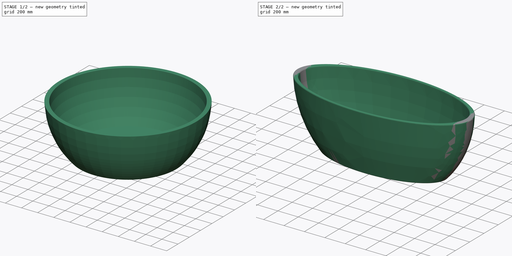
[diagram: build sequence overview — one tinted view per stage of 2, left to right]
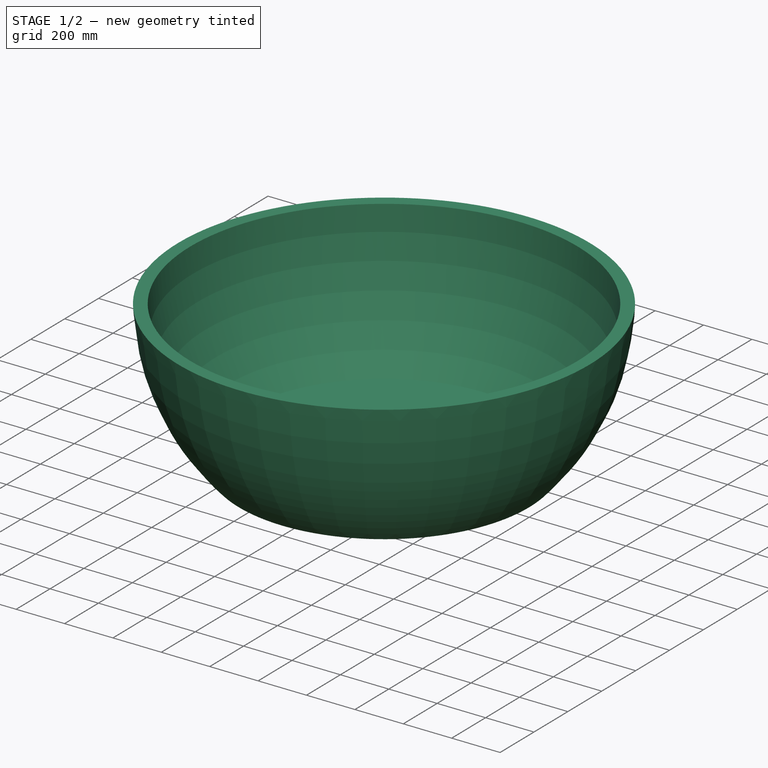
[diagram: stage 1 of 2 — iso view after this stage's code; geometry added in this stage tinted green]
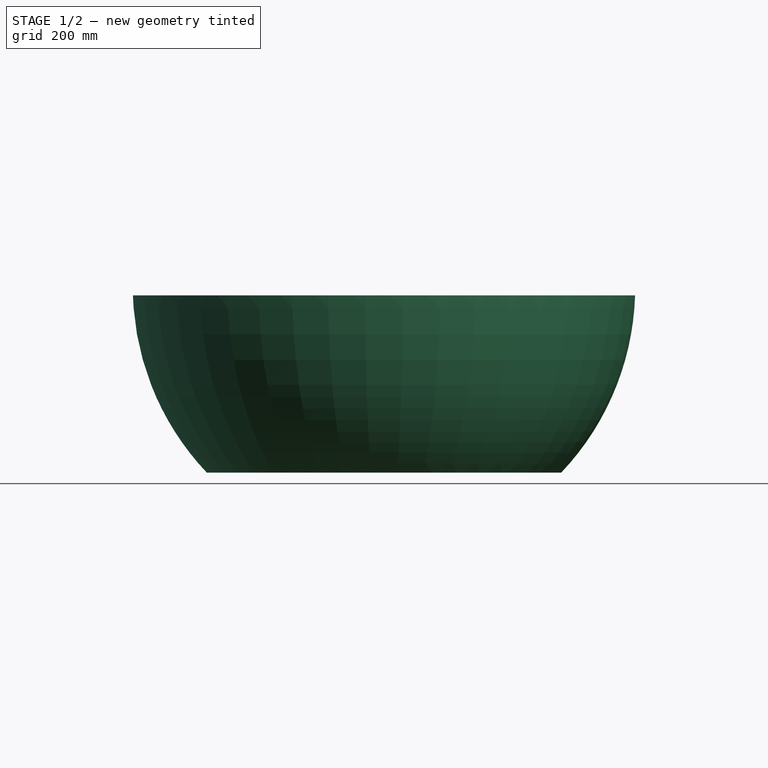
[diagram: stage 1 of 2 — front view after this stage's code; geometry added in this stage tinted green]
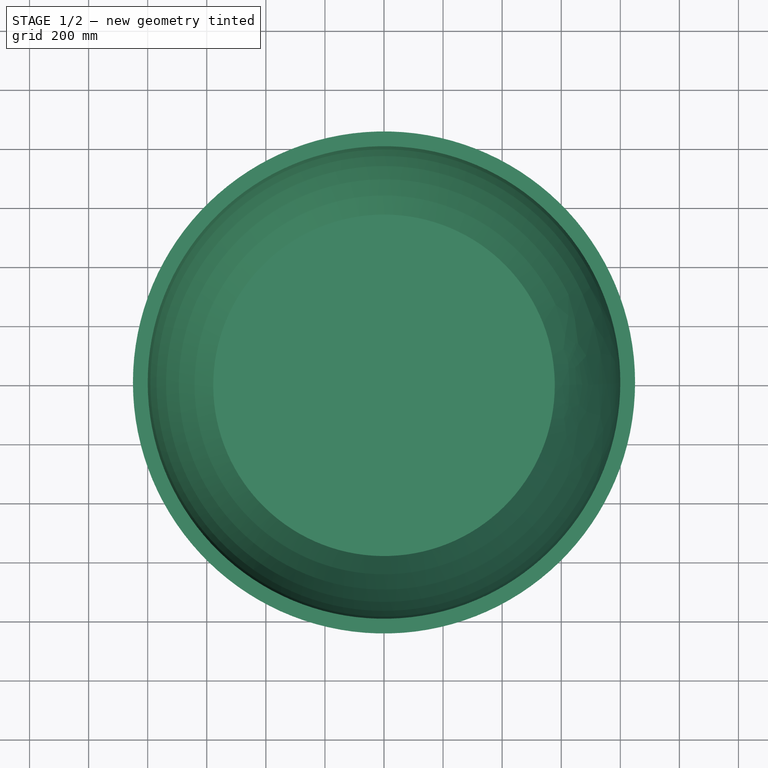
[diagram: stage 1 of 2 — top view after this stage's code; geometry added in this stage tinted green]
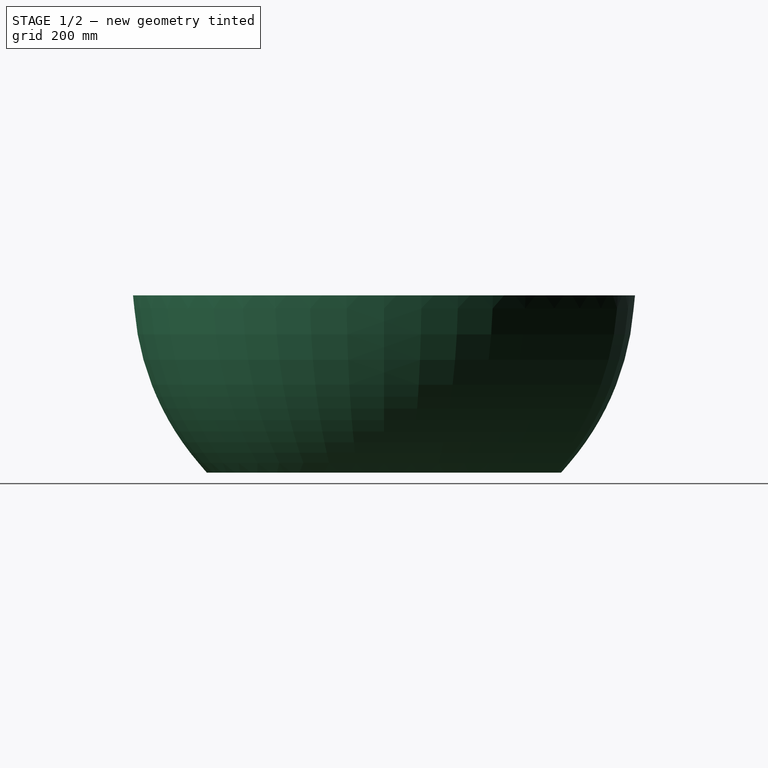
[diagram: stage 1 of 2 — right view after this stage's code; geometry added in this stage tinted green]
FCSTD DOCUMENT  (FreeCAD 0.21R33668 +26 (Git))
Label: Banheira
License: All rights reserved
objects: Sketcher::SketchObject×1, Part::Revolution×1, Part::Thickness×1, Part::FeaturePython×1, PartDesign::Fillet×1, PartDesign::Body×1
note: 7 computed .brp shape members not serialized (recipe doc carries the construction recipe); baked Part::Feature solids carry a one-line shape summary decoded from their .brp

FEATURE [Sketcher::SketchObject] Sketch
  FullyConstrained = false
  Placement = pos=(0,0,0) rot=(1,0,0;1.5708rad)
  sketch-geometry (4):
    g0: LineSegment StartX=0 StartY=600 StartZ=0 EndX=850 EndY=600 EndZ=0
    g1: LineSegment StartX=0 StartY=0 StartZ=0 EndX=600 EndY=4.83169e-11 EndZ=0
    g2: ArcOfCircle CenterX=-62.6306 CenterY=628.179 CenterZ=0 NormalX=0 NormalY=0 NormalZ=1 AngleXU=0 Radius=913.066 StartAngle=5.52447 EndAngle=6.25232
    g3: LineSegment StartX=0 StartY=600 StartZ=0 EndX=0 EndY=0 EndZ=0
  constraints (11):
    c: Horizontal(g0)
    c: Coincident(g1,g-1)
    c: PointOnObject(g1,g-1)
    c: DistanceX(g1,g1) = 600
    c: DistanceX(g0,g0) = 850
    c: PointOnObject(g0,g-2)
    c: DistanceY(g0) = 600
    c: Coincident(g2,g0)
    c: Coincident(g2,g1)
    c: Coincident(g3,g0)
    c: Coincident(g3,g1)
FEATURE [Part::Revolution] Revolve
  Angle = 360
  Axis = (0,0,1)
  Base = (0,0,0)
  FaceMakerClass = Part::FaceMakerBullseye
  Solid = true
  Source = -> Sketch
  Symmetric = false
FEATURE [Part::Thickness] Thickness
  Faces = -> Revolve [Face1]
  Intersection = false
  Join = 0
  Mode = 0
  SelfIntersection = false
  Value = -50
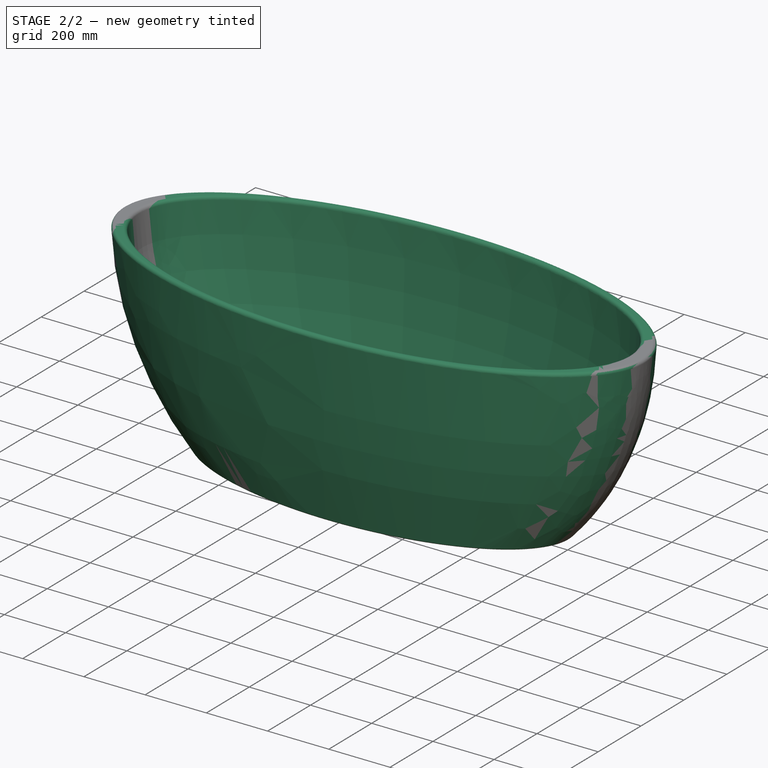
[diagram: stage 2 of 2 — iso view after this stage's code; geometry added in this stage tinted green]
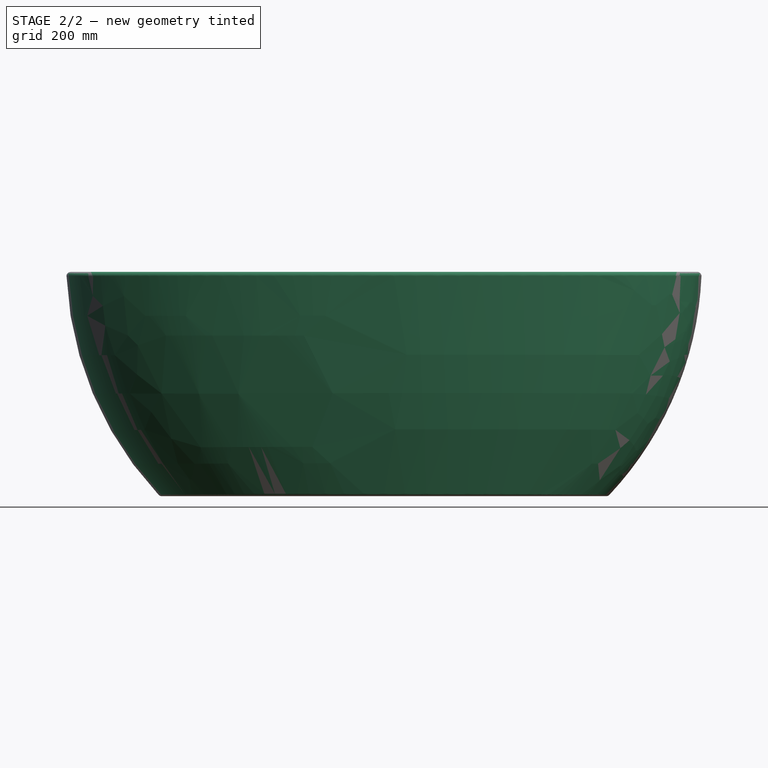
[diagram: stage 2 of 2 — front view after this stage's code; geometry added in this stage tinted green]
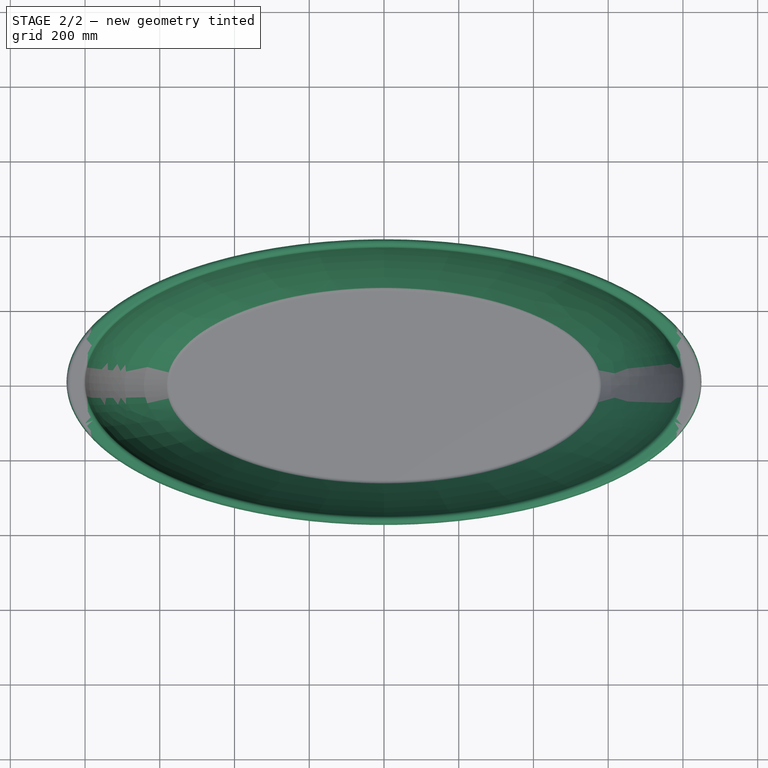
[diagram: stage 2 of 2 — top view after this stage's code; geometry added in this stage tinted green]
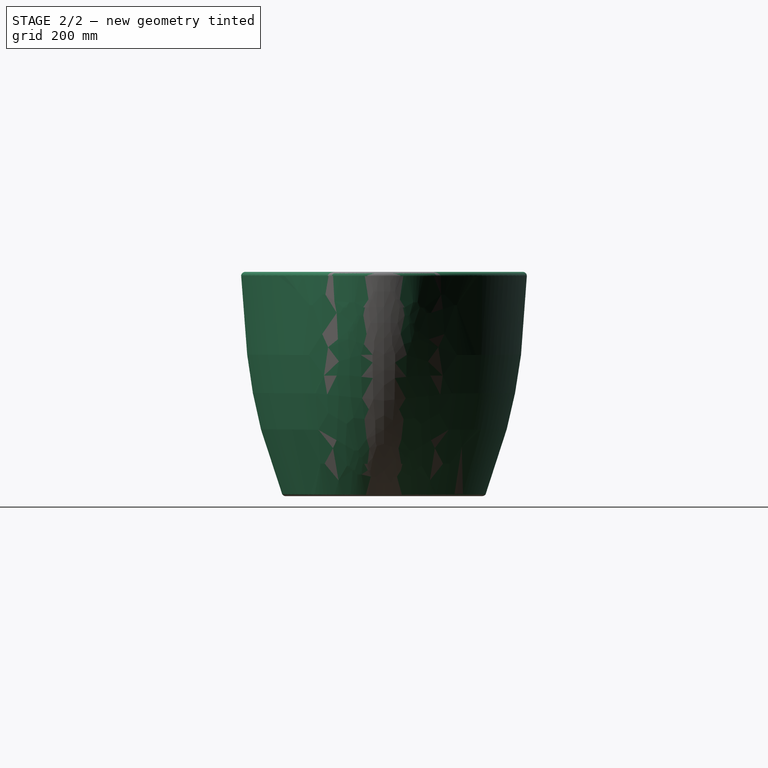
[diagram: stage 2 of 2 — right view after this stage's code; geometry added in this stage tinted green]
FEATURE [Part::FeaturePython] Clone  label="Thickness001"  # Draft clone (typed FeaturePython)
  AttacherType = Attacher::AttachEngine3D
  Fuse = false
  Objects = -> [Thickness]
  Scale = (1,0.45,1)
FEATURE [PartDesign::Fillet] Fillet
  Base = -> Clone [Edge1,Edge2,Edge3,Edge4,Edge5,Edge6]
  Radius = 11
  SupportTransform = false
  UseAllEdges = true
FEATURE [PartDesign::Body] Body  label="Banheira"
  Group = -> [Thickness,Clone,Fillet]
  Origin = -> Origin
  Tip = -> Fillet
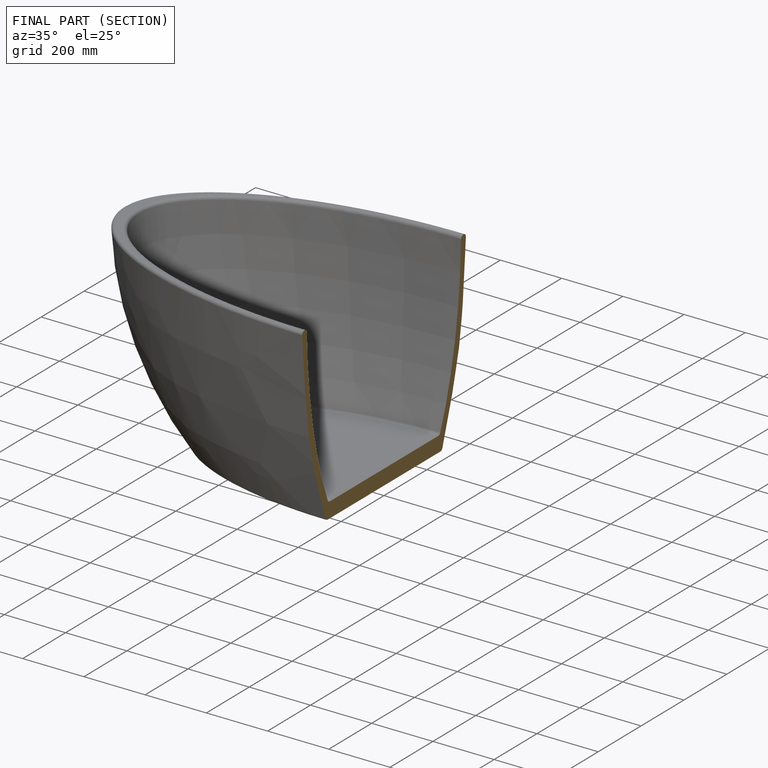
[diagram: finished part — half-section view (interior)]
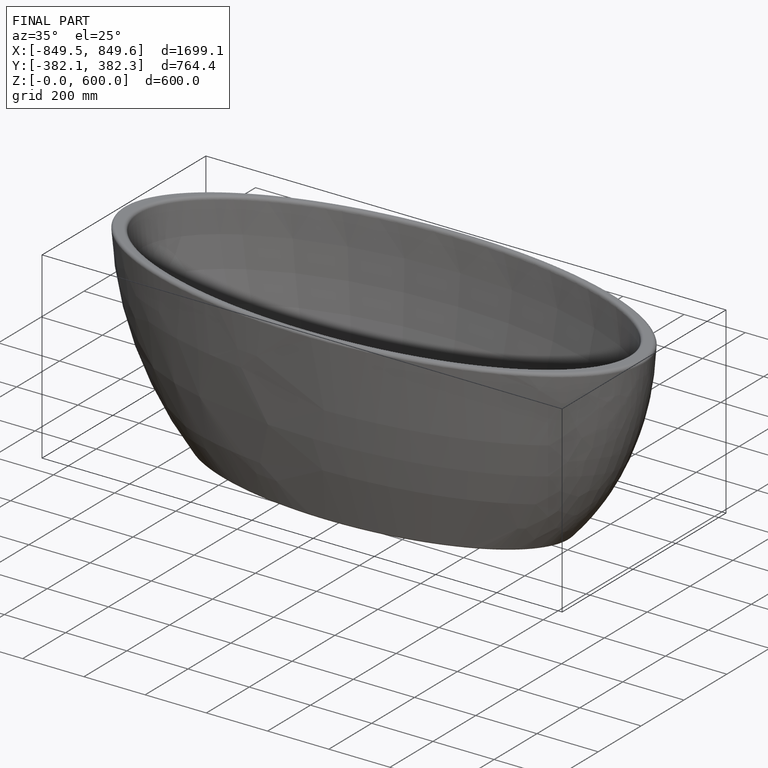
[diagram: finished part — iso view with bounding-box wireframe]
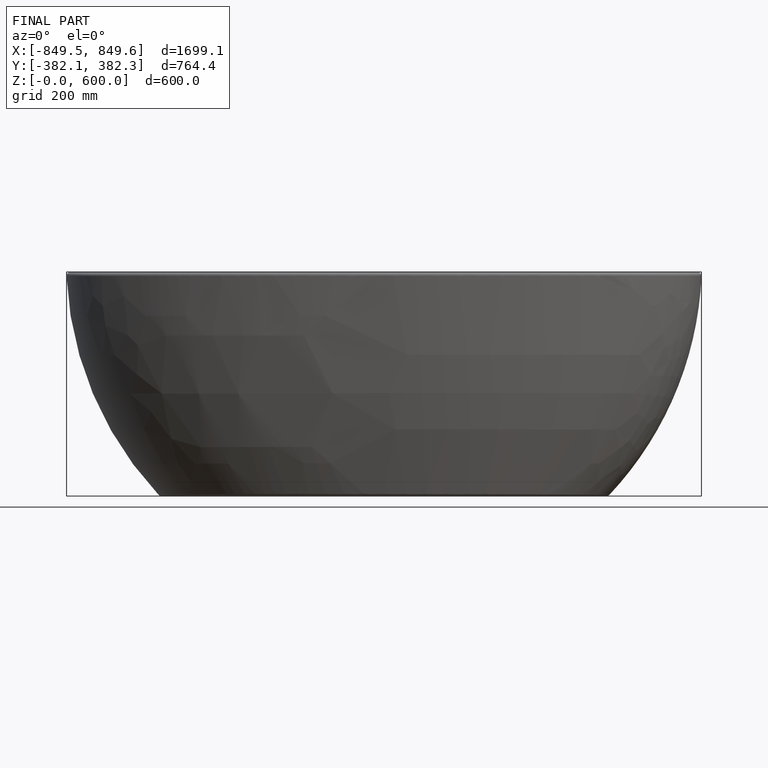
[diagram: finished part — front view with bounding-box wireframe]
